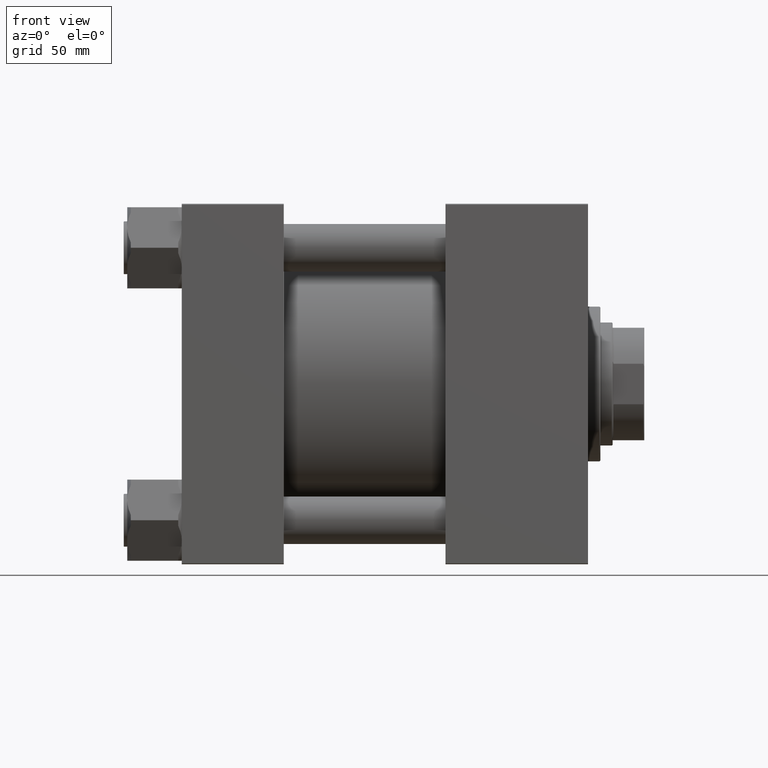
[diagram: clean part render]
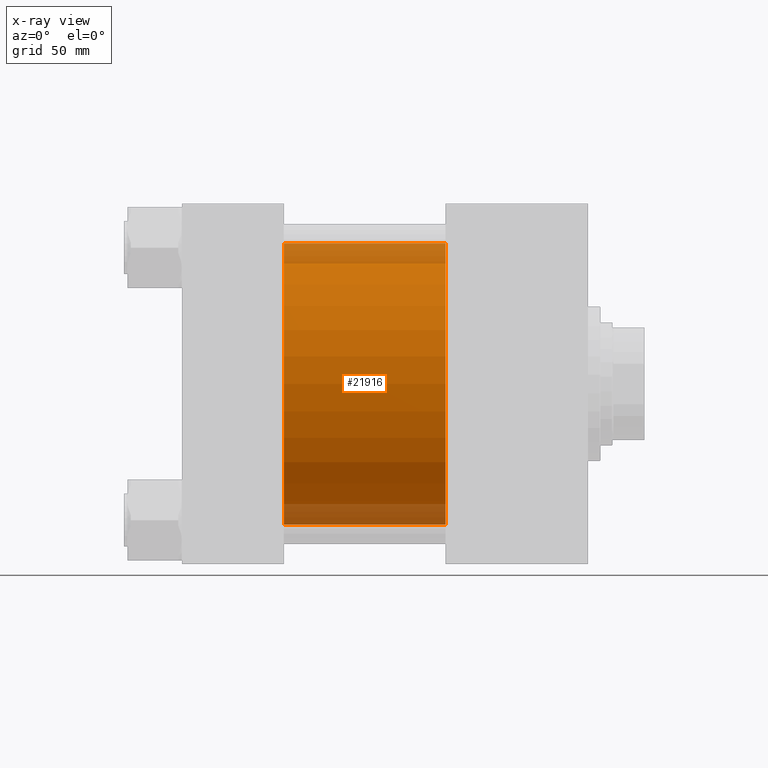
[diagram: x-ray — body ghosted, one internal face saturated and labeled with its STEP entity id]
A machine part, front view, then the same camera in x-ray: the body is ghosted and one INTERNAL B-rep face — a face not visible from any outside direction — is saturated and labeled: STEP entity #21916.
In plain terms, the highlighted cylindrical surface (partial cylindrical patch) has radius 80 mm, axis along (-1, -0, -0).
Its self-contained STEP definition (entity closure, byte-faithful):
#1228 = VECTOR ( 'NONE', #20835, 1000.000000000000000 ) ;
#2653 = CARTESIAN_POINT ( 'NONE',  ( 58.00000000000000000, 7.195089179213615410E-15, -80.00000000000000000 ) ) ;
#3766 = VERTEX_POINT ( 'NONE', #20976 ) ;
#5864 = ORIENTED_EDGE ( 'NONE', *, *, #32611, .T. ) ;
#7365 = ORIENTED_EDGE ( 'NONE', *, *, #38549, .F. ) ;
#7683 = EDGE_LOOP ( 'NONE', ( #5864, #48371, #42248, #7365 ) ) ;
#12664 = CARTESIAN_POINT ( 'NONE',  ( 150.0000000000000000, 7.195089179213615410E-15, -80.00000000000000000 ) ) ;
#13350 = CIRCLE ( 'NONE', #42035, 80.00000000000000000 ) ;
#14124 = CYLINDRICAL_SURFACE ( 'NONE', #33579, 80.00000000000000000 ) ;
#15331 = CARTESIAN_POINT ( 'NONE',  ( 150.0000000000000000, -2.602085213965210642E-15, 80.00000000000000000 ) ) ;
#17451 = DIRECTION ( 'NONE',  ( 0.000000000000000000, 0.000000000000000000, 1.000000000000000000 ) ) ;
#17544 = CARTESIAN_POINT ( 'NONE',  ( 150.0000000000000000, -2.602085213965210642E-15, 0.000000000000000000 ) ) ;
#17964 = CARTESIAN_POINT ( 'NONE',  ( 150.0000000000000000, -2.602085213965210642E-15, 0.000000000000000000 ) ) ;
#18222 = DIRECTION ( 'NONE',  ( -1.000000000000000000, -0.000000000000000000, -0.000000000000000000 ) ) ;
#20284 = CARTESIAN_POINT ( 'NONE',  ( 58.00000000000000000, -2.602085213965210642E-15, 0.000000000000000000 ) ) ;
#20610 = LINE ( 'NONE', #12664, #36902 ) ;
#20835 = DIRECTION ( 'NONE',  ( -1.000000000000000000, -0.000000000000000000, -0.000000000000000000 ) ) ;
#20976 = CARTESIAN_POINT ( 'NONE',  ( 150.0000000000000000, 7.195089179213615410E-15, -80.00000000000000000 ) ) ;
#21916 = ADVANCED_FACE ( 'NONE', ( #44393 ), #14124, .F. ) ;
#22378 = EDGE_CURVE ( 'NONE', #3766, #49870, #20610, .T. ) ;
#24386 = DIRECTION ( 'NONE',  ( 0.000000000000000000, 0.000000000000000000, -1.000000000000000000 ) ) ;
#24609 = EDGE_CURVE ( 'NONE', #27698, #49870, #41085, .T. ) ;
#24698 = DIRECTION ( 'NONE',  ( -1.000000000000000000, -0.000000000000000000, -0.000000000000000000 ) ) ;
#27698 = VERTEX_POINT ( 'NONE', #32356 ) ;
#28515 = LINE ( 'NONE', #44170, #1228 ) ;
#31589 = DIRECTION ( 'NONE',  ( 1.000000000000000000, 0.000000000000000000, 0.000000000000000000 ) ) ;
#32356 = CARTESIAN_POINT ( 'NONE',  ( 58.00000000000000000, -2.602085213965210642E-15, 80.00000000000000000 ) ) ;
#32611 = EDGE_CURVE ( 'NONE', #42800, #3766, #13350, .T. ) ;
#33579 = AXIS2_PLACEMENT_3D ( 'NONE', #17964, #18222, #17451 ) ;
#36902 = VECTOR ( 'NONE', #24698, 1000.000000000000000 ) ;
#38549 = EDGE_CURVE ( 'NONE', #42800, #27698, #28515, .T. ) ;
#41085 = CIRCLE ( 'NONE', #41882, 80.00000000000000000 ) ;
#41882 = AXIS2_PLACEMENT_3D ( 'NONE', #20284, #31589, #24386 ) ;
#41903 = DIRECTION ( 'NONE',  ( 0.000000000000000000, 0.000000000000000000, -1.000000000000000000 ) ) ;
#42035 = AXIS2_PLACEMENT_3D ( 'NONE', #17544, #44991, #41903 ) ;
#42248 = ORIENTED_EDGE ( 'NONE', *, *, #24609, .F. ) ;
#42800 = VERTEX_POINT ( 'NONE', #15331 ) ;
#44170 = CARTESIAN_POINT ( 'NONE',  ( 150.0000000000000000, -2.602085213965210642E-15, 80.00000000000000000 ) ) ;
#44393 = FACE_OUTER_BOUND ( 'NONE', #7683, .T. ) ;
#44991 = DIRECTION ( 'NONE',  ( 1.000000000000000000, 0.000000000000000000, 0.000000000000000000 ) ) ;
#48371 = ORIENTED_EDGE ( 'NONE', *, *, #22378, .T. ) ;
#49870 = VERTEX_POINT ( 'NONE', #2653 ) ;